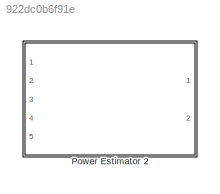
MODEL slx_922dc0b6f91e
KIND model
CONFIG AbsTol = auto
CONFIG FixedStep = auto
CONFIG MaxStep = auto
CONFIG MinStep = auto
CONFIG RelTol = 1e-3
CONFIG SampleTimeConstraint = Unconstrained
CONFIG Solver = ode45
CONFIG SolverMode = Auto
CONFIG SolverName = ode45
CONFIG StartTime = 0.0
CONFIG StopTime = 10.0
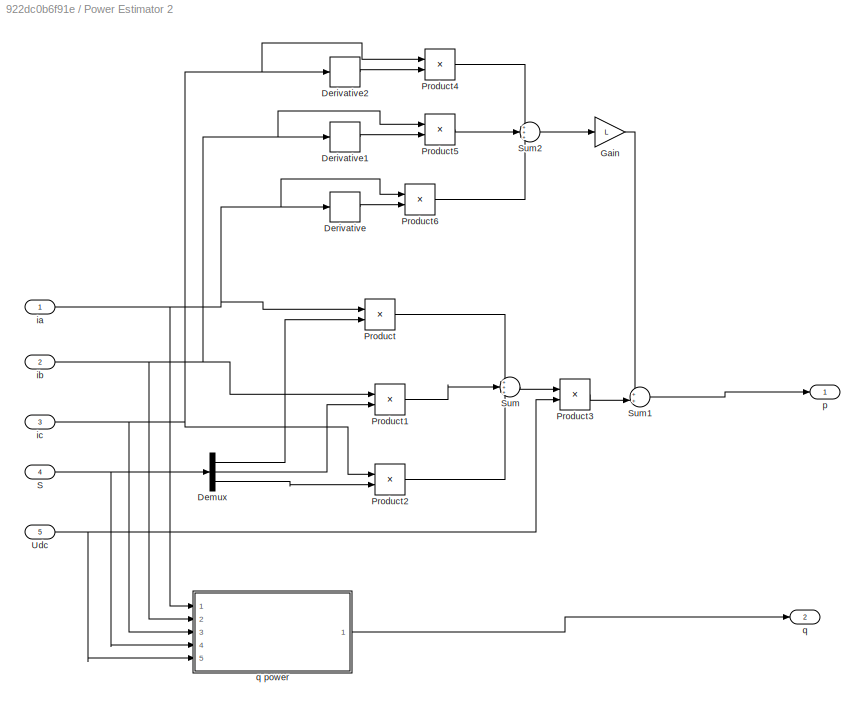
BLOCK [SubSystem] Power Estimator 2
  Ports = [5, 2]
  RequestExecContextInheritance = off
BLOCK [Demux] Power Estimator 2/Demux
  DisplayOption = bar
  Outputs = 3
  Ports = [1, 3]
BLOCK [Derivative] Power Estimator 2/Derivative
BLOCK [Derivative] Power Estimator 2/Derivative1
BLOCK [Derivative] Power Estimator 2/Derivative2
BLOCK [Gain] Power Estimator 2/Gain
  Gain = L
  OutDataTypeStr = Inherit: Inherit via internal rule
  ParamDataTypeStr = Inherit: Inherit via internal rule
  SaturateOnIntegerOverflow = off
BLOCK [Product] Power Estimator 2/Product
  InputSameDT = off
  OutDataTypeStr = Inherit: Inherit via internal rule
  Ports = [2, 1]
  RndMeth = Floor
  SaturateOnIntegerOverflow = off
BLOCK [Product] Power Estimator 2/Product1
  InputSameDT = off
  OutDataTypeStr = Inherit: Inherit via internal rule
  Ports = [2, 1]
  RndMeth = Floor
  SaturateOnIntegerOverflow = off
BLOCK [Product] Power Estimator 2/Product2
  InputSameDT = off
  OutDataTypeStr = Inherit: Inherit via internal rule
  Ports = [2, 1]
  RndMeth = Floor
  SaturateOnIntegerOverflow = off
BLOCK [Product] Power Estimator 2/Product3
  InputSameDT = off
  OutDataTypeStr = Inherit: Inherit via internal rule
  Ports = [2, 1]
  RndMeth = Floor
  SaturateOnIntegerOverflow = off
BLOCK [Product] Power Estimator 2/Product4
  InputSameDT = off
  OutDataTypeStr = Inherit: Inherit via internal rule
  Ports = [2, 1]
  RndMeth = Floor
  SaturateOnIntegerOverflow = off
BLOCK [Product] Power Estimator 2/Product5
  InputSameDT = off
  OutDataTypeStr = Inherit: Inherit via internal rule
  Ports = [2, 1]
  RndMeth = Floor
  SaturateOnIntegerOverflow = off
BLOCK [Product] Power Estimator 2/Product6
  InputSameDT = off
  OutDataTypeStr = Inherit: Inherit via internal rule
  Ports = [2, 1]
  RndMeth = Floor
  SaturateOnIntegerOverflow = off
BLOCK [Inport] Power Estimator 2/S 
  IconDisplay = Port number
  Port = 4
BLOCK [Sum] Power Estimator 2/Sum
  IconShape = round
  InputSameDT = off
  Inputs = +++
  OutDataTypeStr = Inherit: Inherit via internal rule
  Ports = [3, 1]
  SaturateOnIntegerOverflow = off
BLOCK [Sum] Power Estimator 2/Sum1
  IconShape = round
  InputSameDT = off
  Inputs = ++|
  OutDataTypeStr = Inherit: Inherit via internal rule
  Ports = [2, 1]
  SaturateOnIntegerOverflow = off
BLOCK [Sum] Power Estimator 2/Sum2
  IconShape = round
  InputSameDT = off
  Inputs = +++
  OutDataTypeStr = Inherit: Inherit via internal rule
  Ports = [3, 1]
  SaturateOnIntegerOverflow = off
BLOCK [Inport] Power Estimator 2/Udc
  IconDisplay = Port number
  Port = 5
BLOCK [Inport] Power Estimator 2/ia
  IconDisplay = Port number
BLOCK [Inport] Power Estimator 2/ib 
  IconDisplay = Port number
  Port = 2
BLOCK [Inport] Power Estimator 2/ic 
  IconDisplay = Port number
  Port = 3
BLOCK [Outport] Power Estimator 2/p
  IconDisplay = Port number
BLOCK [Outport] Power Estimator 2/q
  IconDisplay = Port number
  Port = 2
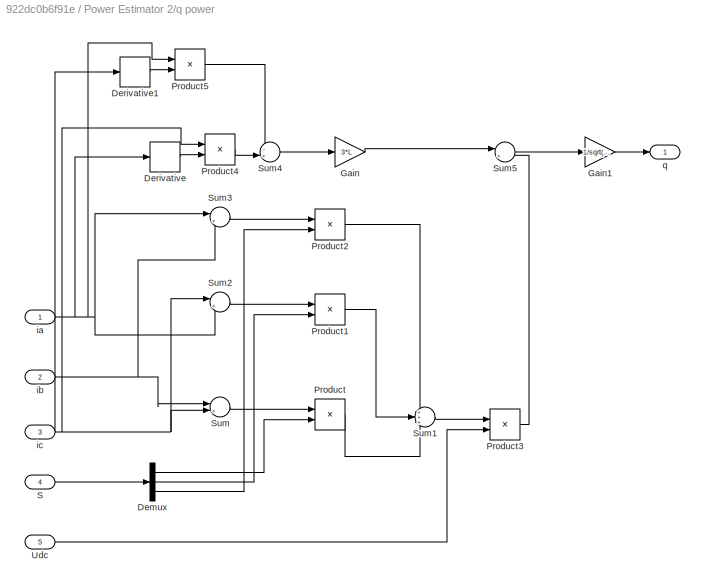
BLOCK [SubSystem] Power Estimator 2/q power 
  Ports = [5, 1]
  RequestExecContextInheritance = off
BLOCK [Demux] Power Estimator 2/q power /Demux
  DisplayOption = bar
  Outputs = 3
  Ports = [1, 3]
BLOCK [Derivative] Power Estimator 2/q power /Derivative
BLOCK [Derivative] Power Estimator 2/q power /Derivative1
BLOCK [Gain] Power Estimator 2/q power /Gain
  Gain = 3*L
  OutDataTypeStr = Inherit: Inherit via internal rule
  ParamDataTypeStr = Inherit: Inherit via internal rule
  SaturateOnIntegerOverflow = off
BLOCK [Gain] Power Estimator 2/q power /Gain1
  Gain = 1/sqrt(3)
  OutDataTypeStr = Inherit: Inherit via internal rule
  ParamDataTypeStr = Inherit: Inherit via internal rule
  SaturateOnIntegerOverflow = off
BLOCK [Product] Power Estimator 2/q power /Product
  InputSameDT = off
  OutDataTypeStr = Inherit: Inherit via internal rule
  Ports = [2, 1]
  RndMeth = Floor
  SaturateOnIntegerOverflow = off
BLOCK [Product] Power Estimator 2/q power /Product1
  InputSameDT = off
  OutDataTypeStr = Inherit: Inherit via internal rule
  Ports = [2, 1]
  RndMeth = Floor
  SaturateOnIntegerOverflow = off
BLOCK [Product] Power Estimator 2/q power /Product2
  InputSameDT = off
  OutDataTypeStr = Inherit: Inherit via internal rule
  Ports = [2, 1]
  RndMeth = Floor
  SaturateOnIntegerOverflow = off
BLOCK [Product] Power Estimator 2/q power /Product3
  InputSameDT = off
  OutDataTypeStr = Inherit: Inherit via internal rule
  Ports = [2, 1]
  RndMeth = Floor
  SaturateOnIntegerOverflow = off
BLOCK [Product] Power Estimator 2/q power /Product4
  InputSameDT = off
  OutDataTypeStr = Inherit: Inherit via internal rule
  Ports = [2, 1]
  RndMeth = Floor
  SaturateOnIntegerOverflow = off
BLOCK [Product] Power Estimator 2/q power /Product5
  InputSameDT = off
  OutDataTypeStr = Inherit: Inherit via internal rule
  Ports = [2, 1]
  RndMeth = Floor
  SaturateOnIntegerOverflow = off
BLOCK [Inport] Power Estimator 2/q power /S 
  IconDisplay = Port number
  Port = 4
BLOCK [Sum] Power Estimator 2/q power /Sum
  IconShape = round
  InputSameDT = off
  Inputs = |+-
  OutDataTypeStr = Inherit: Inherit via internal rule
  Ports = [2, 1]
  SaturateOnIntegerOverflow = off
BLOCK [Sum] Power Estimator 2/q power /Sum1
  IconShape = round
  InputSameDT = off
  Inputs = +++
  OutDataTypeStr = Inherit: Inherit via internal rule
  Ports = [3, 1]
  SaturateOnIntegerOverflow = off
BLOCK [Sum] Power Estimator 2/q power /Sum2
  IconShape = round
  InputSameDT = off
  Inputs = |+-
  OutDataTypeStr = Inherit: Inherit via internal rule
  Ports = [2, 1]
  SaturateOnIntegerOverflow = off
BLOCK [Sum] Power Estimator 2/q power /Sum3
  IconShape = round
  InputSameDT = off
  Inputs = |+-
  OutDataTypeStr = Inherit: Inherit via internal rule
  Ports = [2, 1]
  SaturateOnIntegerOverflow = off
BLOCK [Sum] Power Estimator 2/q power /Sum4
  IconShape = round
  InputSameDT = off
  Inputs = -+|
  OutDataTypeStr = Inherit: Inherit via internal rule
  Ports = [2, 1]
  SaturateOnIntegerOverflow = off
BLOCK [Sum] Power Estimator 2/q power /Sum5
  IconShape = round
  InputSameDT = off
  Inputs = |+-
  OutDataTypeStr = Inherit: Inherit via internal rule
  Ports = [2, 1]
  SaturateOnIntegerOverflow = off
BLOCK [Inport] Power Estimator 2/q power /Udc
  IconDisplay = Port number
  Port = 5
BLOCK [Inport] Power Estimator 2/q power /ia
  IconDisplay = Port number
BLOCK [Inport] Power Estimator 2/q power /ib 
  IconDisplay = Port number
  Port = 2
BLOCK [Inport] Power Estimator 2/q power /ic 
  IconDisplay = Port number
  Port = 3
BLOCK [Outport] Power Estimator 2/q power /q 
  IconDisplay = Port number
LINE Power Estimator 2/Demux:1 -> Power Estimator 2/Product:2
LINE Power Estimator 2/Demux:2 -> Power Estimator 2/Product1:2
LINE Power Estimator 2/Demux:3 -> Power Estimator 2/Product2:2
LINE Power Estimator 2/Derivative1:1 -> Power Estimator 2/Product5:2
LINE Power Estimator 2/Derivative2:1 -> Power Estimator 2/Product4:2
LINE Power Estimator 2/Derivative:1 -> Power Estimator 2/Product6:2
LINE Power Estimator 2/Gain:1 -> Power Estimator 2/Sum1:1
LINE Power Estimator 2/Product1:1 -> Power Estimator 2/Sum:2
LINE Power Estimator 2/Product2:1 -> Power Estimator 2/Sum:3
LINE Power Estimator 2/Product3:1 -> Power Estimator 2/Sum1:2
LINE Power Estimator 2/Product4:1 -> Power Estimator 2/Sum2:1
LINE Power Estimator 2/Product5:1 -> Power Estimator 2/Sum2:2
LINE Power Estimator 2/Product6:1 -> Power Estimator 2/Sum2:3
LINE Power Estimator 2/Product:1 -> Power Estimator 2/Sum:1
NET Power Estimator 2/S :1 -> Power Estimator 2/Demux:1, Power Estimator 2/q power :4
LINE Power Estimator 2/Sum1:1 -> Power Estimator 2/p:1
LINE Power Estimator 2/Sum2:1 -> Power Estimator 2/Gain:1
LINE Power Estimator 2/Sum:1 -> Power Estimator 2/Product3:1
NET Power Estimator 2/Udc:1 -> Power Estimator 2/Product3:2, Power Estimator 2/q power :5
NET Power Estimator 2/ia:1 -> Power Estimator 2/Derivative:1, Power Estimator 2/Product6:1, Power Estimator 2/Product:1, Power Estimator 2/q power :1
NET Power Estimator 2/ib :1 -> Power Estimator 2/Derivative1:1, Power Estimator 2/Product1:1, Power Estimator 2/Product5:1, Power Estimator 2/q power :2
NET Power Estimator 2/ic :1 -> Power Estimator 2/Derivative2:1, Power Estimator 2/Product2:1, Power Estimator 2/Product4:1, Power Estimator 2/q power :3
LINE Power Estimator 2/q power /Demux:1 -> Power Estimator 2/q power /Product:2
LINE Power Estimator 2/q power /Demux:2 -> Power Estimator 2/q power /Product1:2
LINE Power Estimator 2/q power /Demux:3 -> Power Estimator 2/q power /Product2:2
LINE Power Estimator 2/q power /Derivative1:1 -> Power Estimator 2/q power /Product5:2
LINE Power Estimator 2/q power /Derivative:1 -> Power Estimator 2/q power /Product4:2
LINE Power Estimator 2/q power /Gain1:1 -> Power Estimator 2/q power /q :1
LINE Power Estimator 2/q power /Gain:1 -> Power Estimator 2/q power /Sum5:1
LINE Power Estimator 2/q power /Product1:1 -> Power Estimator 2/q power /Sum1:2
LINE Power Estimator 2/q power /Product2:1 -> Power Estimator 2/q power /Sum1:1
LINE Power Estimator 2/q power /Product3:1 -> Power Estimator 2/q power /Sum5:2
LINE Power Estimator 2/q power /Product4:1 -> Power Estimator 2/q power /Sum4:2
LINE Power Estimator 2/q power /Product5:1 -> Power Estimator 2/q power /Sum4:1
LINE Power Estimator 2/q power /Product:1 -> Power Estimator 2/q power /Sum1:3
LINE Power Estimator 2/q power /S :1 -> Power Estimator 2/q power /Demux:1
LINE Power Estimator 2/q power /Sum1:1 -> Power Estimator 2/q power /Product3:1
LINE Power Estimator 2/q power /Sum2:1 -> Power Estimator 2/q power /Product1:1
LINE Power Estimator 2/q power /Sum3:1 -> Power Estimator 2/q power /Product2:1
LINE Power Estimator 2/q power /Sum4:1 -> Power Estimator 2/q power /Gain:1
LINE Power Estimator 2/q power /Sum5:1 -> Power Estimator 2/q power /Gain1:1
LINE Power Estimator 2/q power /Sum:1 -> Power Estimator 2/q power /Product:1
LINE Power Estimator 2/q power /Udc:1 -> Power Estimator 2/q power /Product3:2
NET Power Estimator 2/q power /ia:1 -> Power Estimator 2/q power /Derivative:1, Power Estimator 2/q power /Product5:1, Power Estimator 2/q power /Sum2:2, Power Estimator 2/q power /Sum3:1
NET Power Estimator 2/q power /ib :1 -> Power Estimator 2/q power /Sum3:2, Power Estimator 2/q power /Sum:1
NET Power Estimator 2/q power /ic :1 -> Power Estimator 2/q power /Derivative1:1, Power Estimator 2/q power /Product4:1, Power Estimator 2/q power /Sum2:1, Power Estimator 2/q power /Sum:2
LINE Power Estimator 2/q power :1 -> Power Estimator 2/q:1
note: NET lines group one-source signal fan-out (src -> all destinations, sorted); 1:1 wires keep LINE
